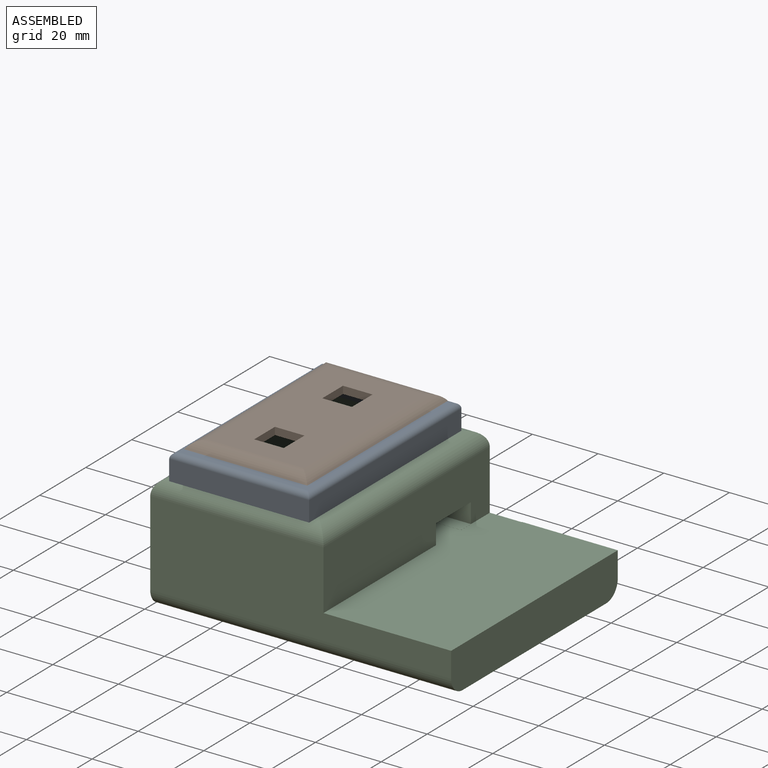
[diagram: assembled view]
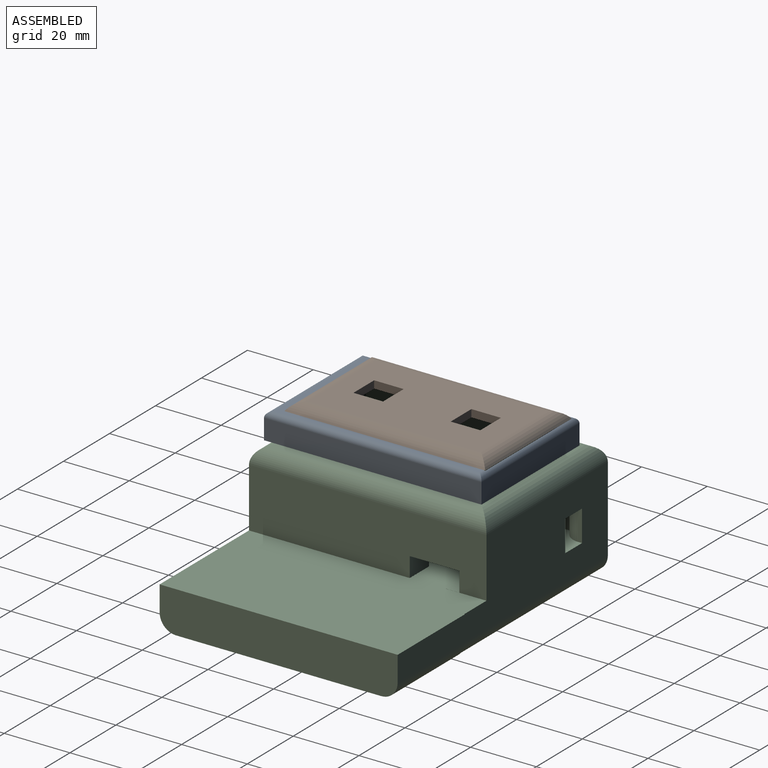
[diagram: assembled view, second angle]
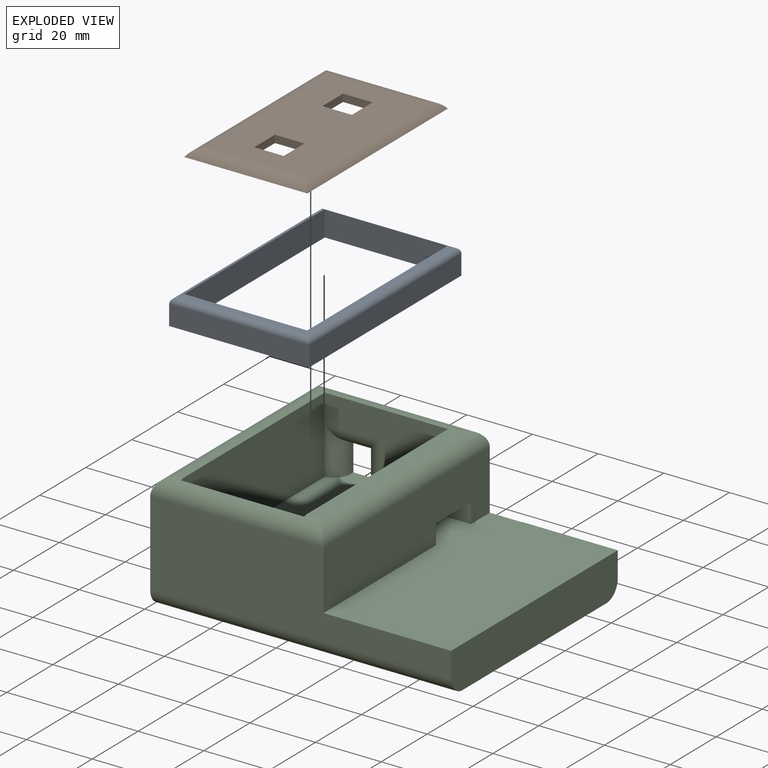
[diagram: exploded view]
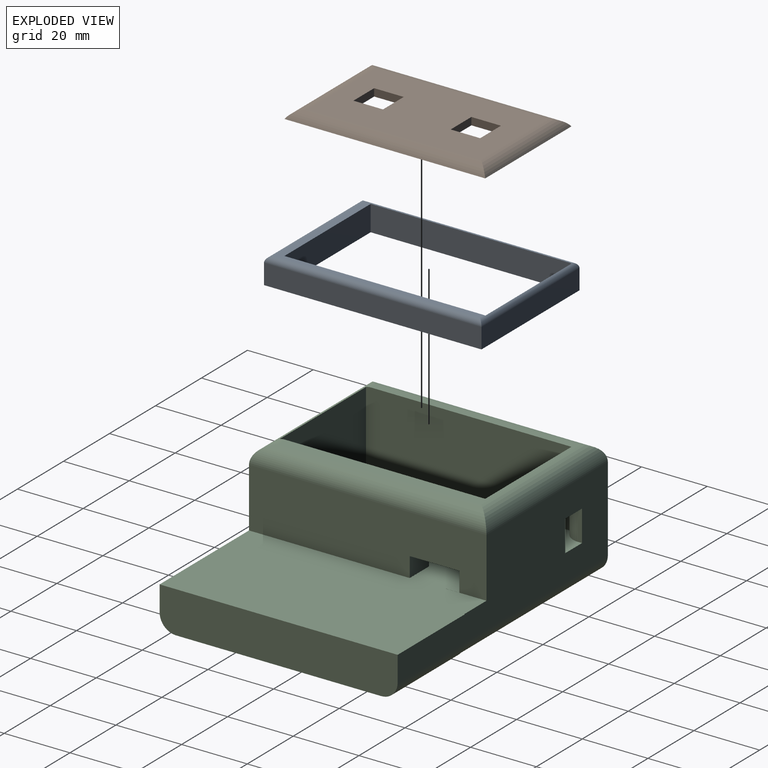
[diagram: exploded view, second angle]
ASSEMBLY  parts=3 mates=2
PART A: 14 faces, bbox 42.6x66.2x7.8 mm
  f0: plane 61.15x7.8mm, normal (-1,0,0), area 477mm2, adj f5,f6,f7,f8,f10
  f1: plane 61.15x7.8mm, normal (1,0,0), area 477mm2, adj f5,f6,f7,f8,f10
  f2: plane 66.23x6.11mm, normal (1,0,0), area 404.7mm2, adj f3,f7,f9,f12
  f3: plane 42.62x6.11mm, normal (0,1,0), area 260.4mm2, adj f2,f4,f7,f10
  f4: plane 66.23x6.11mm, normal (-1,0,0), area 404.7mm2, adj f3,f7,f9,f11
  f5: plane 37.5x7.72mm, normal (0,-1,0), area 289.4mm2, adj f0,f1,f7,f10
  f6: plane 62.85x39.24mm, normal (0,0,1), area 192.4mm2, adj f0,f1,f8,f10,f11,f12,f13
  f7: plane 66.23x42.62mm, normal (0,0,-1), area 529.2mm2, adj f0,f1,f2,f3,f4,f5,f8,f9
  f8: plane 37.5x7.8mm, normal (0,1,0), area 292.5mm2, adj f0,f1,f6,f7
  f9: plane 42.62x6.11mm, normal (0,-1,0), area 260.4mm2, adj f2,f4,f7,f13
  f10: cylinder r=1.69mm len=42.62mm, axis (1,0,0), area 89.9mm2, adj f0,f1,f3,f5,f6,f11,f12
  f11: cylinder r=1.69mm len=66.23mm, axis (0,1,0), area 172.6mm2, adj f4,f6,f10,f13
  f12: cylinder r=1.69mm len=66.23mm, axis (0,-1,0), area 172.6mm2, adj f2,f6,f10,f13
  f13: cylinder r=1.69mm len=42.62mm, axis (-1,0,0), area 109.9mm2, adj f6,f9,f11,f12
PART B: 14 faces, bbox 37.5x61.1x2.3 mm
  f0: plane 52.73x29.09mm, normal (0,0,1), area 1371.7mm2, adj f2,f3,f4,f5,f6,f7,f8,f9
  f1: plane 61.15x37.5mm, normal (0,0,-1), area 2131.2mm2, adj f2,f3,f4,f5,f6,f7,f8,f9
  f2: cylinder r=5mm len=61.15mm, axis (0,-1,0), area 286.8mm2, adj f0,f1,f3,f4
  f3: cylinder r=5mm len=37.5mm, axis (1,0,0), area 168.5mm2, adj f0,f1,f2,f5
  f4: cylinder r=5mm len=37.5mm, axis (1,0,0), area 168.5mm2, adj f0,f1,f2,f5
  f5: cylinder r=5mm len=61.15mm, axis (0,-1,0), area 286.8mm2, adj f0,f1,f3,f4
  f6: plane 9x2.3mm, normal (0,-1,0), area 20.7mm2, adj f0,f1,f7,f9
  f7: plane 9x2.3mm, normal (1,0,0), area 20.7mm2, adj f0,f1,f6,f8
  f8: plane 9x2.3mm, normal (0,1,0), area 20.7mm2, adj f0,f1,f7,f9
  f9: plane 9x2.3mm, normal (-1,0,0), area 20.7mm2, adj f0,f1,f6,f8
  f10: plane 9x2.3mm, normal (1,0,0), area 20.7mm2, adj f0,f1,f11,f13
  f11: plane 9x2.3mm, normal (0,1,0), area 20.7mm2, adj f0,f1,f10,f12
  f12: plane 9x2.3mm, normal (-1,0,0), area 20.7mm2, adj f0,f1,f11,f13
  f13: plane 9x2.3mm, normal (0,-1,0), area 20.7mm2, adj f0,f1,f10,f12
PART C: 38 faces, bbox 91.6x72.5x35.9 mm
  f0: plane 72.31x18.08mm, normal (1,0,0), area 1216.1mm2, adj f4,f5,f6,f15,f16,f26,f33,f34
  f1: plane 9.49x1.17mm, normal (-1,0,0), area 11.1mm2, adj f5,f6,f22,f24
  f2: plane 9.49x1.22mm, normal (1,0,0), area 11.6mm2, adj f5,f6,f22,f23,f25
  f3: plane 72.31x30.78mm, normal (-1,0,0), area 2214.9mm2, adj f4,f5,f7,f29,f30,f31
  f4: plane 91.64x25.78mm, normal (0,-1,0), area 1659.7mm2, adj f0,f3,f6,f19,f28,f30
  f5: plane 62.45x25.78mm, normal (0,1,0), area 1365.5mm2, adj f0,f1,f2,f3,f6,f20,f22,f27
  f6: plane 84.74x72.48mm, normal (0,0,1), area 5308.9mm2, adj f0,f1,f2,f4,f5,f8,f9,f10
  f7: plane 91.64x62.48mm, normal (0,0,-1), area 5715.1mm2, adj f3,f19,f20,f30,f31,f32
  f8: plane 37.5x23.16mm, normal (0,-1,0), area 624.7mm2, adj f6,f9,f14,f17,f24,f25
  f9: plane 62.56x23.16mm, normal (-1,0,0), area 1357.5mm2, adj f6,f8,f10,f15,f16,f17,f28,f33
  f10: plane 37.5x22.91mm, normal (0,1,0), area 840.3mm2, adj f6,f9,f11,f13,f14,f18,f28
  f11: plane 15.79x0.2mm, normal (-1,0,0), area 3.1mm2, adj f6,f10,f12,f18
  f12: plane 15.79x1.19mm, normal (0,1,0), area 18.8mm2, adj f6,f11,f13,f18
  f13: plane 15.79x0.2mm, normal (1,0,0), area 3.1mm2, adj f6,f10,f12,f18
  f14: plane 62.56x23.16mm, normal (1,0,0), area 1448.7mm2, adj f6,f8,f10,f17,f23,f28
  f15: plane 8.38x0.02mm, normal (0,-1,0), area 0.2mm2, adj f0,f6,f9,f36
  f16: plane 8.38x0.02mm, normal (0,1,0), area 0.2mm2, adj f0,f6,f9,f37
  f17: plane 62.15x42.62mm, normal (0,0,1), area 361.5mm2, adj f8,f9,f14,f26,f27,f28,f29
  f18: plane 1.19x0.2mm, normal (0,0,-1), area 0.2mm2, adj f10,f11,f12,f13
  f19: plane 72.48x12.7mm, normal (1,0,0), area 909.8mm2, adj f4,f6,f7,f21,f30,f32
  f20: plane 12.7x5.17mm, normal (-1,0,0), area 2.1mm2, adj f5,f6,f7,f21,f31,f32
  f21: plane 29.18x7.7mm, normal (0,1,0), area 224.7mm2, adj f6,f19,f20,f32
  f22: plane 7.32x1.17mm, normal (0,0,-1), area 8.5mm2, adj f1,f2,f5,f25
  f23: cylinder r=5.08mm len=14.57mm, axis (0,0,-1), area 80.4mm2, adj f2,f6,f14,f25
  f24: cylinder r=5.08mm len=14.57mm, axis (0,0,1), area 90.5mm2, adj f1,f6,f8,f25
  f25: cylinder r=5.08mm len=16.73mm, axis (1,0,0), area 87mm2, adj f2,f8,f22,f23,f24
  f26: cylinder r=5.08mm len=72.31mm, axis (0,1,0), area 547.6mm2, adj f0,f17,f27,f28
  f27: cylinder r=5.08mm len=52.78mm, axis (1,0,0), area 391.7mm2, adj f5,f17,f26,f29
  f28: cylinder r=5.08mm len=52.78mm, axis (-1,0,0), area 331.6mm2, adj f4,f9,f10,f14,f17,f26,f29
  f29: cylinder r=5.08mm len=72.31mm, axis (0,1,0), area 547.6mm2, adj f3,f17,f27,f28
  f30: cylinder r=5mm len=91.64mm, axis (1,0,0), area 719.7mm2, adj f3,f4,f7,f19
  f31: cylinder r=5mm len=62.45mm, axis (-1,0,0), area 490.5mm2, adj f3,f5,f7,f20
  f32: cylinder r=5mm len=29.18mm, axis (1,0,0), area 229.2mm2, adj f7,f19,f20,f21
  f33: plane 8.38x6.01mm, normal (0,1,0), area 50.3mm2, adj f0,f9,f35,f37
  f34: plane 8.38x6.01mm, normal (0,-1,0), area 50.3mm2, adj f0,f9,f35,f36
  f35: plane 15.15x8.38mm, normal (0,0,-1), area 126.9mm2, adj f0,f9,f33,f34
  f36: plane 8.38x4.29mm, normal (0,0,1), area 35.9mm2, adj f0,f9,f15,f34
  f37: plane 8.38x0.02mm, normal (0,0,1), area 0.2mm2, adj f0,f9,f16,f33
PLACE A t=(-48.52,12.26,43.06)mm
PLACE B t=(-48.52,12.26,43.06)mm
PLACE C t=(-31.9,-5.91,7.2)mm
MATE fastened B.f1 <-> A.f6  axis (0,0,-1) through (-24.84,-28.08,50.86)mm
MATE fastened A.f7 <-> C.f17  axis (0,0,1) through (-21.54,34.23,43.06)mm
